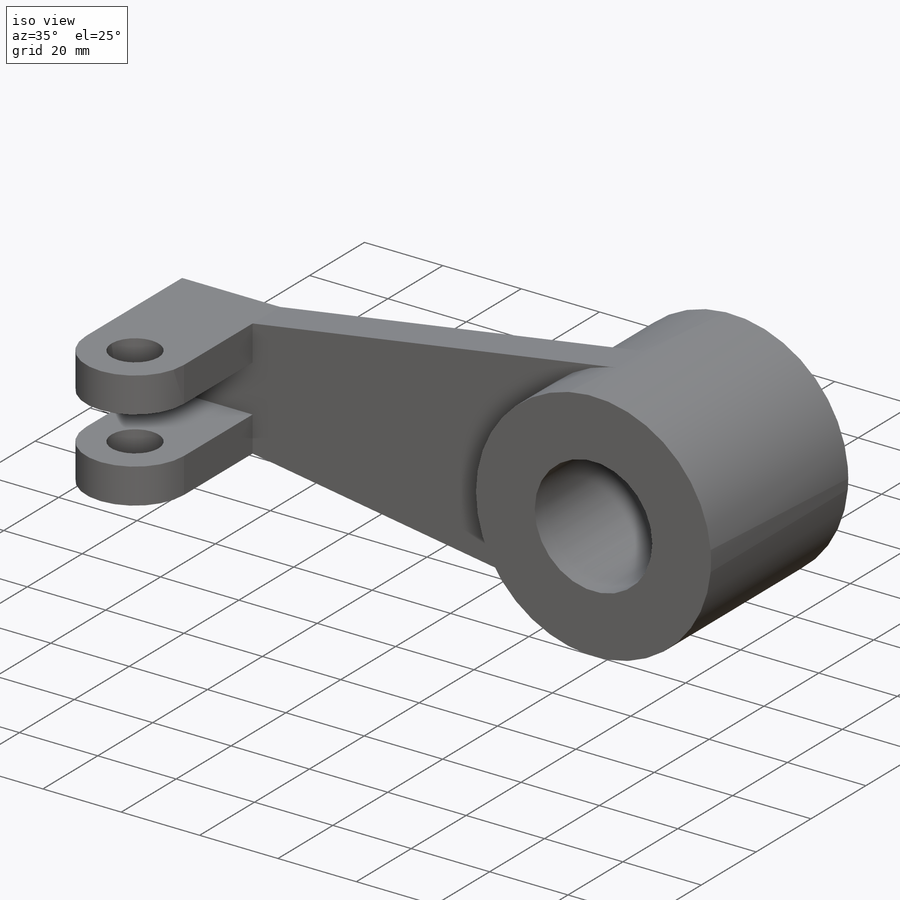
[diagram: iso view]
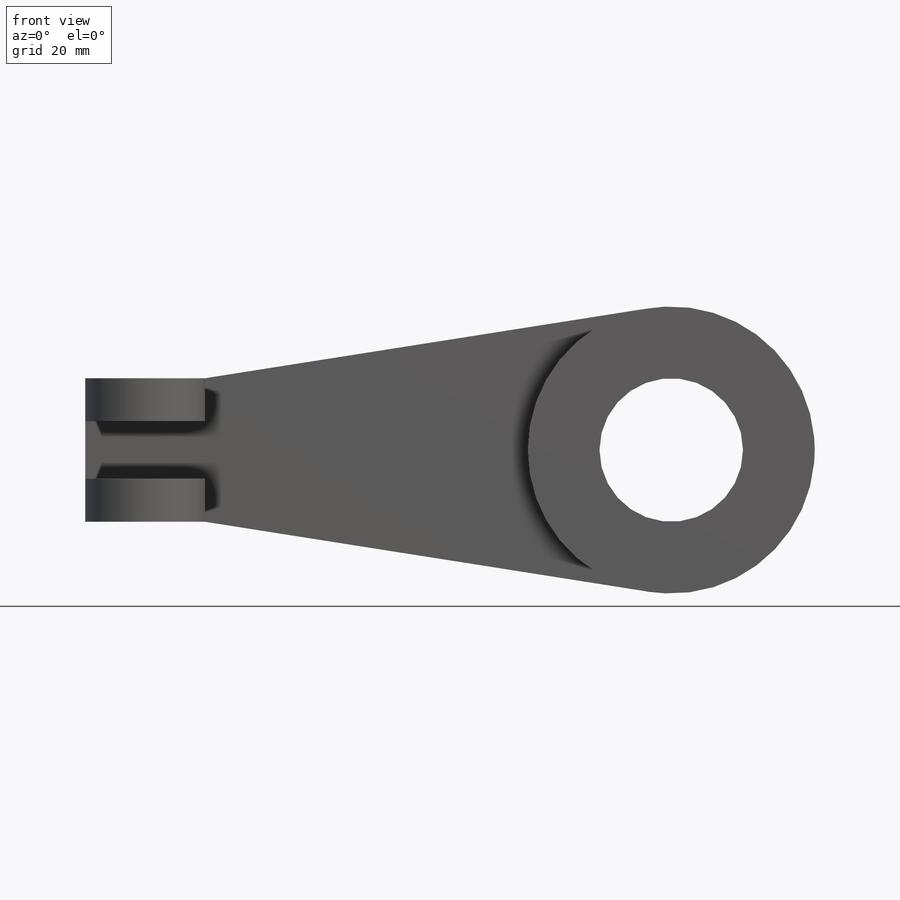
[diagram: front view]
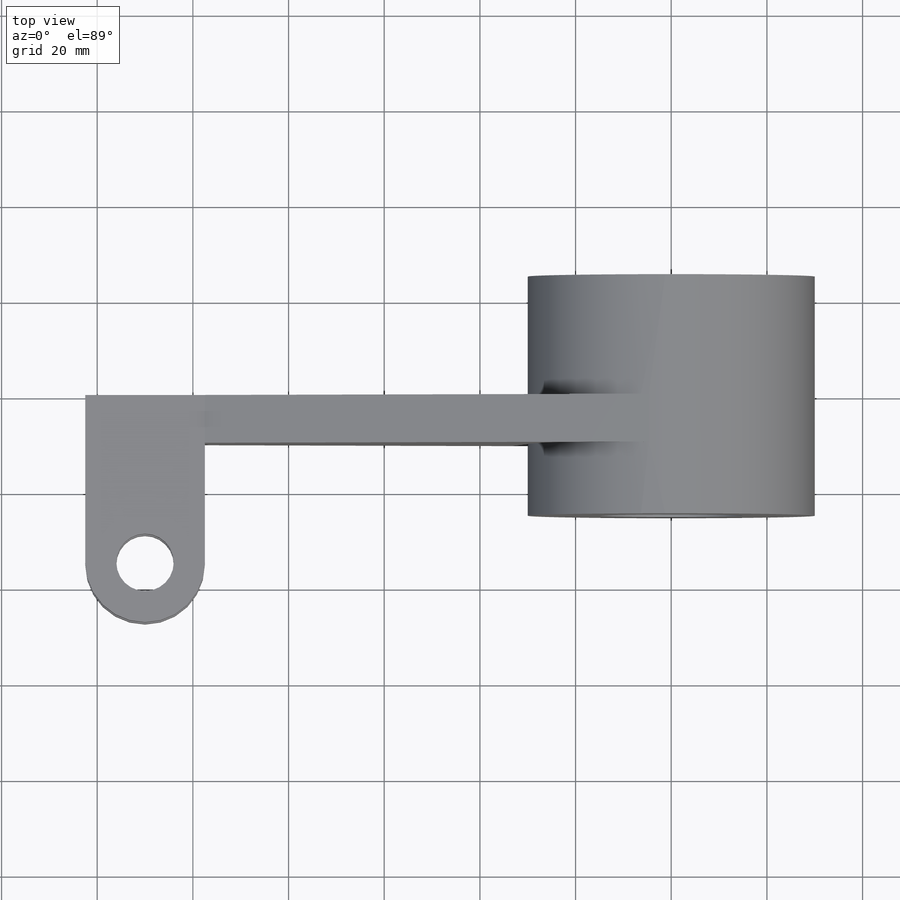
[diagram: top view]
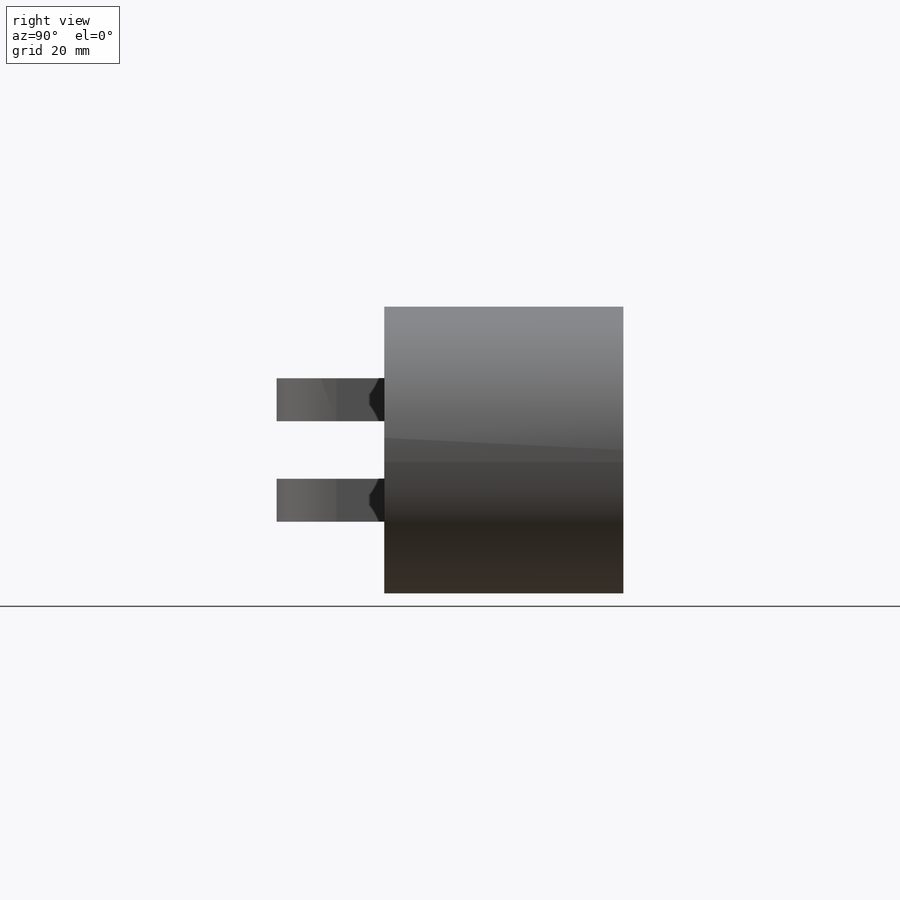
[diagram: right view]
SOLIDWORKS PART (.sldprt)
format: sldprt  version: not decoded by parser v0  size: 186,880 bytes
history: native  units: mm
features: sketch x4, extrude x3, material x1, cut_extrude x1, mirror x1 (+12 scaffold rows collapsed)
feature tree (22):
  scaffold x12  (default folders/planes/origin — collapsed)
  material  "Material <not specified>"
  sketch  "Sketch1"  dims[D1=~24.953514mm]
  extrude  "Boss-Extrude1"  Depth=50mm
  sketch  "Sketch2"  dims[D1=~13.962591mm]
  cut_extrude  "Cut-Extrude1"  Depth=50mm
  sketch  "Sketch6"  dims[D1=25.0mm D2=30.0mm D3=122.5mm]
  extrude  "Boss-Extrude3"  Depth=10mm
  sketch  "Sketch8"  dims[D1=25.0mm D2=25.0mm]
  extrude  "Boss-Extrude4"  Depth=9mm
  mirror  "Mirror1"
decode coverage: 8 of 9 modeling features carry decoded parameters
note: ~ marks probable driven/reference dimensions
note: suppression state not decoded; provenance and decode notes live in map.json
